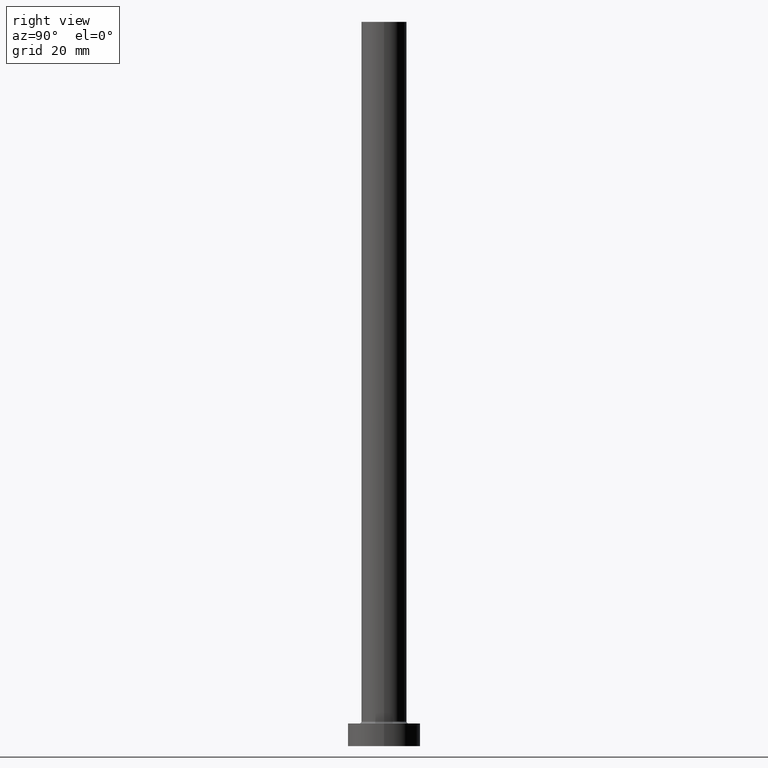
[diagram: clean part render]
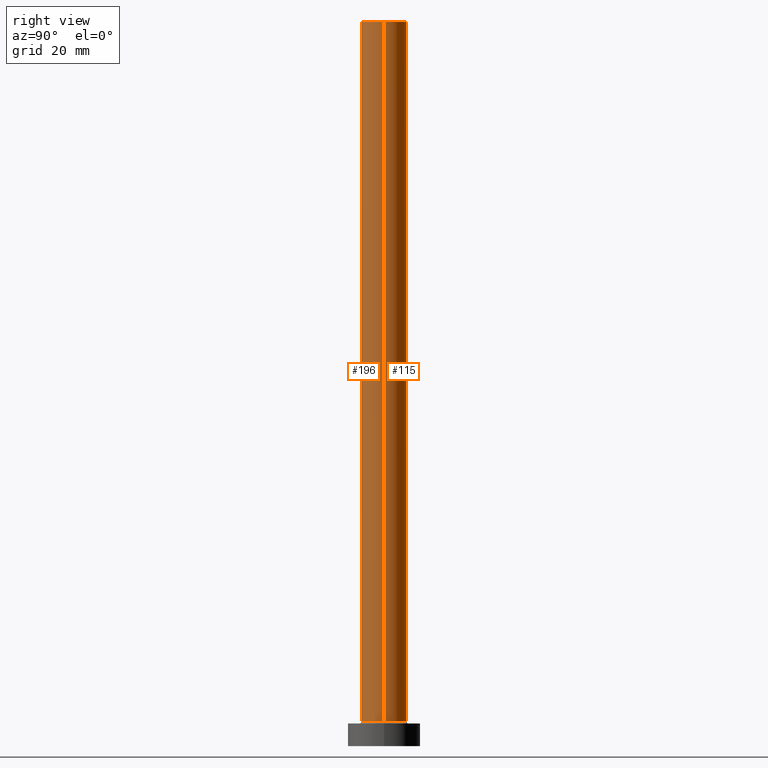
[diagram: same view with one multi-face feature highlighted, each face labeled with its STEP entity id]
A machine part, right view. The highlighted faces form ONE feature: a constant-radius fillet chain: 2 tangent blend faces with common blend radius 5 mm. The faces share edges in the B-rep.
Their STEP definitions:
[1] entity #115 (Cylinder):
#48 = EDGE_CURVE ( 'NONE', #188, #125, #289, .T. ) ;
#63 = EDGE_CURVE ( 'NONE', #415, #125, #269, .T. ) ;
#74 = VECTOR ( 'NONE', #354, 1000.000000000000000 ) ;
#81 = FACE_OUTER_BOUND ( 'NONE', #114, .T. ) ;
#87 = ORIENTED_EDGE ( 'NONE', *, *, #48, .F. ) ;
#100 = CARTESIAN_POINT ( 'NONE',  ( 0.000000000000000000, 0.000000000000000000, 5.500000000000005329 ) ) ;
#104 = CARTESIAN_POINT ( 'NONE',  ( -5.000000000000000000, 0.000000000000000000, 160.0000000000000000 ) ) ;
#107 = CARTESIAN_POINT ( 'NONE',  ( 5.000000000000000000, 6.123233995736766282E-16, 5.500000000000005329 ) ) ;
#109 = DIRECTION ( 'NONE',  ( 0.000000000000000000, 0.000000000000000000, 1.000000000000000000 ) ) ;
#113 = DIRECTION ( 'NONE',  ( -1.000000000000000000, 0.000000000000000000, 0.000000000000000000 ) ) ;
#114 = EDGE_LOOP ( 'NONE', ( #119, #219, #440, #87 ) ) ;
#115 = ADVANCED_FACE ( 'NONE', ( #81 ), #151, .T. ) ;
#116 = CARTESIAN_POINT ( 'NONE',  ( -5.000000000000000000, 0.000000000000000000, 5.500000000000005329 ) ) ;
#119 = ORIENTED_EDGE ( 'NONE', *, *, #393, .F. ) ;
#125 = VERTEX_POINT ( 'NONE', #116 ) ;
#134 = CARTESIAN_POINT ( 'NONE',  ( 5.000000000000000000, 6.123233995736766282E-16, 160.0000000000000000 ) ) ;
#144 = CARTESIAN_POINT ( 'NONE',  ( 0.000000000000000000, 0.000000000000000000, 160.0000000000000000 ) ) ;
#147 = VECTOR ( 'NONE', #460, 1000.000000000000000 ) ;
#151 = CYLINDRICAL_SURFACE ( 'NONE', #355, 5.000000000000000000 ) ;
#167 = CARTESIAN_POINT ( 'NONE',  ( 0.000000000000000000, 0.000000000000000000, 160.0000000000000000 ) ) ;
#177 = EDGE_CURVE ( 'NONE', #407, #415, #179, .T. ) ;
#179 = LINE ( 'NONE', #364, #74 ) ;
#188 = VERTEX_POINT ( 'NONE', #395 ) ;
#219 = ORIENTED_EDGE ( 'NONE', *, *, #177, .T. ) ;
#223 = CIRCLE ( 'NONE', #287, 5.000000000000000000 ) ;
#254 = DIRECTION ( 'NONE',  ( 1.000000000000000000, 0.000000000000000000, 0.000000000000000000 ) ) ;
#269 = CIRCLE ( 'NONE', #384, 5.000000000000000000 ) ;
#286 = DIRECTION ( 'NONE',  ( 1.000000000000000000, 0.000000000000000000, 0.000000000000000000 ) ) ;
#287 = AXIS2_PLACEMENT_3D ( 'NONE', #167, #455, #286 ) ;
#289 = LINE ( 'NONE', #104, #147 ) ;
#354 = DIRECTION ( 'NONE',  ( -0.000000000000000000, -0.000000000000000000, -1.000000000000000000 ) ) ;
#355 = AXIS2_PLACEMENT_3D ( 'NONE', #144, #432, #113 ) ;
#364 = CARTESIAN_POINT ( 'NONE',  ( 5.000000000000000000, 6.123233995736766282E-16, 160.0000000000000000 ) ) ;
#384 = AXIS2_PLACEMENT_3D ( 'NONE', #100, #109, #254 ) ;
#393 = EDGE_CURVE ( 'NONE', #407, #188, #223, .T. ) ;
#395 = CARTESIAN_POINT ( 'NONE',  ( -5.000000000000000000, 0.000000000000000000, 160.0000000000000000 ) ) ;
#407 = VERTEX_POINT ( 'NONE', #134 ) ;
#415 = VERTEX_POINT ( 'NONE', #107 ) ;
#432 = DIRECTION ( 'NONE',  ( -0.000000000000000000, -0.000000000000000000, -1.000000000000000000 ) ) ;
#440 = ORIENTED_EDGE ( 'NONE', *, *, #63, .T. ) ;
#455 = DIRECTION ( 'NONE',  ( 0.000000000000000000, 0.000000000000000000, 1.000000000000000000 ) ) ;
#460 = DIRECTION ( 'NONE',  ( -0.000000000000000000, -0.000000000000000000, -1.000000000000000000 ) ) ;
[2] entity #196 (Cylinder):
#13 = DIRECTION ( 'NONE',  ( 1.000000000000000000, 0.000000000000000000, 0.000000000000000000 ) ) ;
#15 = DIRECTION ( 'NONE',  ( 1.000000000000000000, 0.000000000000000000, 0.000000000000000000 ) ) ;
#40 = CYLINDRICAL_SURFACE ( 'NONE', #340, 5.000000000000000000 ) ;
#48 = EDGE_CURVE ( 'NONE', #188, #125, #289, .T. ) ;
#56 = ORIENTED_EDGE ( 'NONE', *, *, #279, .F. ) ;
#74 = VECTOR ( 'NONE', #354, 1000.000000000000000 ) ;
#84 = ORIENTED_EDGE ( 'NONE', *, *, #48, .T. ) ;
#104 = CARTESIAN_POINT ( 'NONE',  ( -5.000000000000000000, 0.000000000000000000, 160.0000000000000000 ) ) ;
#107 = CARTESIAN_POINT ( 'NONE',  ( 5.000000000000000000, 6.123233995736766282E-16, 5.500000000000005329 ) ) ;
#116 = CARTESIAN_POINT ( 'NONE',  ( -5.000000000000000000, 0.000000000000000000, 5.500000000000005329 ) ) ;
#125 = VERTEX_POINT ( 'NONE', #116 ) ;
#134 = CARTESIAN_POINT ( 'NONE',  ( 5.000000000000000000, 6.123233995736766282E-16, 160.0000000000000000 ) ) ;
#145 = ORIENTED_EDGE ( 'NONE', *, *, #206, .T. ) ;
#146 = DIRECTION ( 'NONE',  ( -0.000000000000000000, -0.000000000000000000, -1.000000000000000000 ) ) ;
#147 = VECTOR ( 'NONE', #460, 1000.000000000000000 ) ;
#154 = ORIENTED_EDGE ( 'NONE', *, *, #177, .F. ) ;
#157 = EDGE_LOOP ( 'NONE', ( #154, #56, #84, #145 ) ) ;
#162 = CARTESIAN_POINT ( 'NONE',  ( 0.000000000000000000, 0.000000000000000000, 5.500000000000005329 ) ) ;
#177 = EDGE_CURVE ( 'NONE', #407, #415, #179, .T. ) ;
#179 = LINE ( 'NONE', #364, #74 ) ;
#188 = VERTEX_POINT ( 'NONE', #395 ) ;
#196 = ADVANCED_FACE ( 'NONE', ( #218 ), #40, .T. ) ;
#206 = EDGE_CURVE ( 'NONE', #125, #415, #233, .T. ) ;
#218 = FACE_OUTER_BOUND ( 'NONE', #157, .T. ) ;
#233 = CIRCLE ( 'NONE', #350, 5.000000000000000000 ) ;
#265 = DIRECTION ( 'NONE',  ( 0.000000000000000000, 0.000000000000000000, 1.000000000000000000 ) ) ;
#279 = EDGE_CURVE ( 'NONE', #188, #407, #323, .T. ) ;
#289 = LINE ( 'NONE', #104, #147 ) ;
#323 = CIRCLE ( 'NONE', #448, 5.000000000000000000 ) ;
#326 = CARTESIAN_POINT ( 'NONE',  ( 0.000000000000000000, 0.000000000000000000, 160.0000000000000000 ) ) ;
#340 = AXIS2_PLACEMENT_3D ( 'NONE', #326, #146, #371 ) ;
#350 = AXIS2_PLACEMENT_3D ( 'NONE', #162, #443, #13 ) ;
#354 = DIRECTION ( 'NONE',  ( -0.000000000000000000, -0.000000000000000000, -1.000000000000000000 ) ) ;
#364 = CARTESIAN_POINT ( 'NONE',  ( 5.000000000000000000, 6.123233995736766282E-16, 160.0000000000000000 ) ) ;
#366 = CARTESIAN_POINT ( 'NONE',  ( 0.000000000000000000, 0.000000000000000000, 160.0000000000000000 ) ) ;
#371 = DIRECTION ( 'NONE',  ( -1.000000000000000000, 0.000000000000000000, 0.000000000000000000 ) ) ;
#395 = CARTESIAN_POINT ( 'NONE',  ( -5.000000000000000000, 0.000000000000000000, 160.0000000000000000 ) ) ;
#407 = VERTEX_POINT ( 'NONE', #134 ) ;
#415 = VERTEX_POINT ( 'NONE', #107 ) ;
#443 = DIRECTION ( 'NONE',  ( 0.000000000000000000, 0.000000000000000000, 1.000000000000000000 ) ) ;
#448 = AXIS2_PLACEMENT_3D ( 'NONE', #366, #265, #15 ) ;
#460 = DIRECTION ( 'NONE',  ( -0.000000000000000000, -0.000000000000000000, -1.000000000000000000 ) ) ;